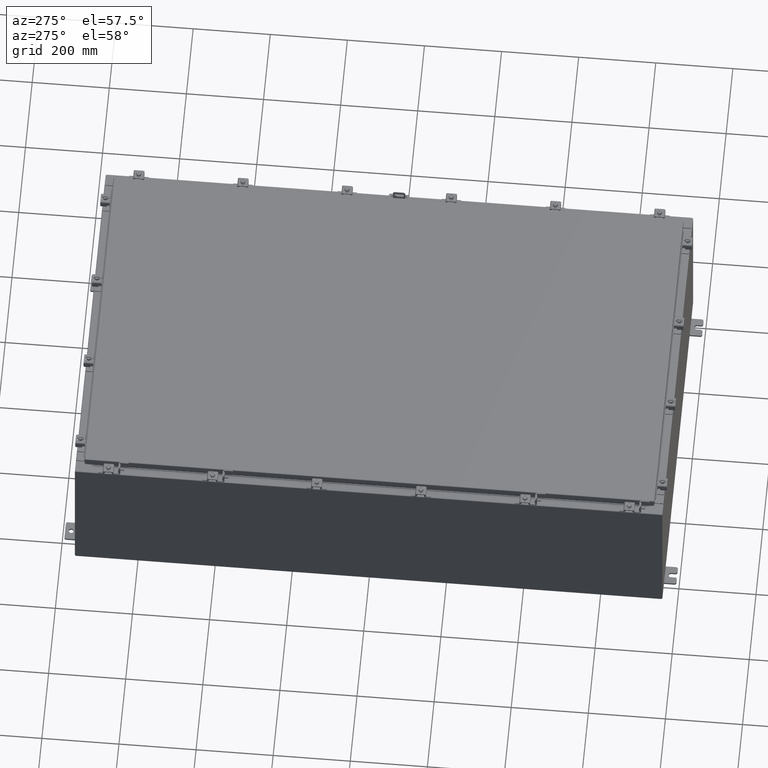
[diagram: clean part render]
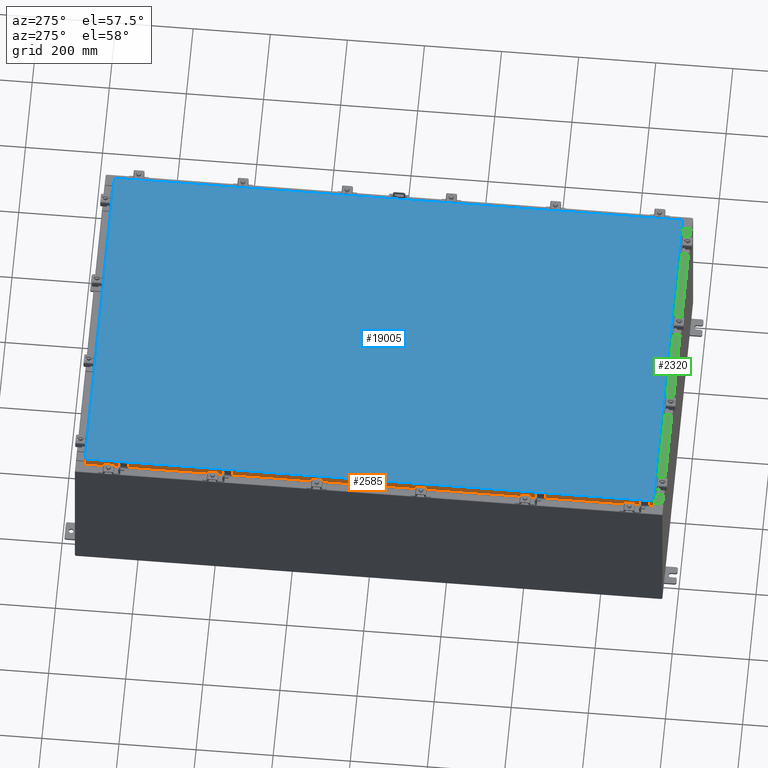
[diagram: same view with three faces highlighted in distinct colors, each labeled with its STEP entity id]
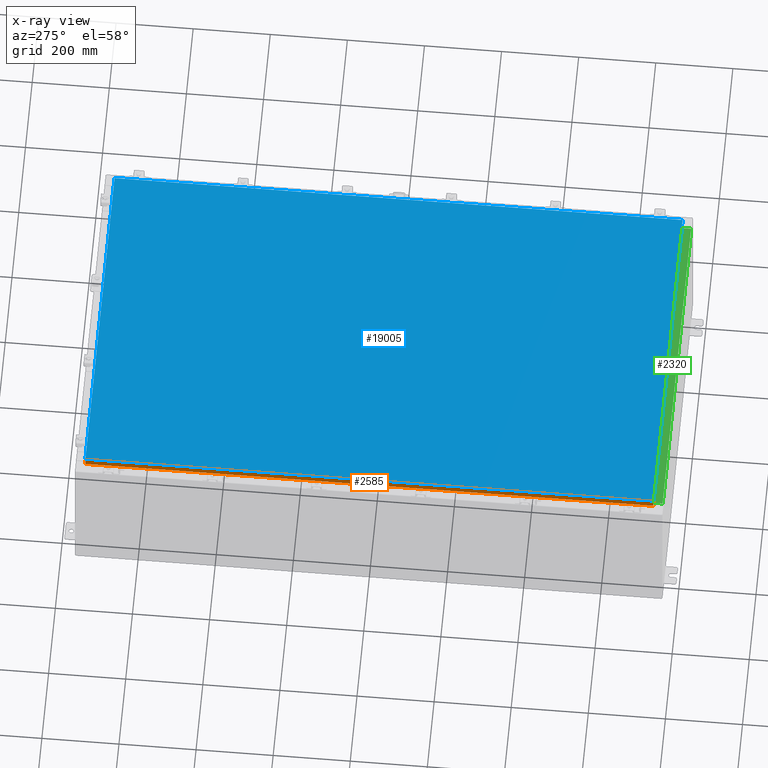
[diagram: x-ray of the same camera — body ghosted, the three highlighted faces saturated]
A machine part, auxiliary view with three faces highlighted in distinct colors.
The next image is the same camera in x-ray (body ghosted, the three faces saturated) — at least one of them is partly hidden behind the body in this view.
Their STEP definitions:

[orange] entity #2585 — the highlighted planar face has unit normal (1, 0, -0).
#624 = VECTOR ( 'NONE', #4853, 39.37007874015748100 ) ;
#1266 = EDGE_LOOP ( 'NONE', ( #14176, #4689, #3399, #27461, #1981, #4034 ) ) ;
#1704 = CARTESIAN_POINT ( 'NONE',  ( -17.07799999999999600, 29.00515786437626500, -0.08770000000000007000 ) ) ;
#1981 = ORIENTED_EDGE ( 'NONE', *, *, #10956, .F. ) ;
#2585 = ADVANCED_FACE ( 'NONE', ( #24496 ), #7654, .F. ) ;
#3006 = CARTESIAN_POINT ( 'NONE',  ( -17.07799999999999900, -29.09400000000000500, -0.8499999999999996400 ) ) ;
#3399 = ORIENTED_EDGE ( 'NONE', *, *, #17711, .F. ) ;
#4034 = ORIENTED_EDGE ( 'NONE', *, *, #10370, .F. ) ;
#4689 = ORIENTED_EDGE ( 'NONE', *, *, #6551, .T. ) ;
#4852 = CARTESIAN_POINT ( 'NONE',  ( -17.07799999999999900, -29.09400000000000500, -0.8499999999999996400 ) ) ;
#4853 = DIRECTION ( 'NONE',  ( -0.0000000000000000000, 1.000000000000000000, -0.0000000000000000000 ) ) ;
#4999 = LINE ( 'NONE', #24320, #21378 ) ;
#5601 = DIRECTION ( 'NONE',  ( 1.000000000000000000, 3.374737631835138300E-031, -2.818880942772360100E-015 ) ) ;
#5641 = EDGE_CURVE ( 'NONE', #26469, #9018, #16949, .T. ) ;
#5996 = LINE ( 'NONE', #4852, #17415 ) ;
#6060 = CARTESIAN_POINT ( 'NONE',  ( -17.07799999999998500, -28.25515786437626500, -0.8500000000000017500 ) ) ;
#6551 = EDGE_CURVE ( 'NONE', #23533, #6680, #22241, .T. ) ;
#6680 = VERTEX_POINT ( 'NONE', #26297 ) ;
#7654 = PLANE ( 'NONE',  #7750 ) ;
#7750 = AXIS2_PLACEMENT_3D ( 'NONE', #20415, #5601, #20605 ) ;
#8272 = VECTOR ( 'NONE', #17943, 39.37007874015748100 ) ;
#8839 = CARTESIAN_POINT ( 'NONE',  ( -17.07799999999999600, 29.00515786437626500, 2.509435972240157400E-013 ) ) ;
#8961 = LINE ( 'NONE', #3006, #8272 ) ;
#9018 = VERTEX_POINT ( 'NONE', #11288 ) ;
#9234 = CARTESIAN_POINT ( 'NONE',  ( -17.07799999999999900, -29.00515786437626500, -0.8499999999999996400 ) ) ;
#9664 = CARTESIAN_POINT ( 'NONE',  ( -17.07799999999999600, -29.00515786437627600, -0.08770000000000007000 ) ) ;
#9961 = CARTESIAN_POINT ( 'NONE',  ( -17.07799999999999600, -29.09400000000000500, -0.08770000000000007000 ) ) ;
#10055 = DIRECTION ( 'NONE',  ( 3.374737631835139200E-031, -1.000000000000000000, -9.198750492177080800E-046 ) ) ;
#10370 = EDGE_CURVE ( 'NONE', #20720, #18146, #4999, .T. ) ;
#10956 = EDGE_CURVE ( 'NONE', #18146, #26469, #5996, .T. ) ;
#10993 = DIRECTION ( 'NONE',  ( -2.818880942772360100E-015, 6.982962677686265900E-015, -1.000000000000000000 ) ) ;
#11288 = CARTESIAN_POINT ( 'NONE',  ( -17.07799999999998500, 28.25515786437626500, -0.8500000000000017500 ) ) ;
#11928 = VECTOR ( 'NONE', #10055, 39.37007874015748100 ) ;
#14176 = ORIENTED_EDGE ( 'NONE', *, *, #18400, .F. ) ;
#16949 = LINE ( 'NONE', #17667, #624 ) ;
#17415 = VECTOR ( 'NONE', #19826, 39.37007874015748100 ) ;
#17667 = CARTESIAN_POINT ( 'NONE',  ( -17.07799999999998500, -28.25515786437626500, -0.8500000000000017500 ) ) ;
#17711 = EDGE_CURVE ( 'NONE', #9018, #6680, #8961, .T. ) ;
#17943 = DIRECTION ( 'NONE',  ( 4.379057701015054300E-047, 1.000000000000000000, 1.197190551977018000E-016 ) ) ;
#18146 = VERTEX_POINT ( 'NONE', #9234 ) ;
#18400 = EDGE_CURVE ( 'NONE', #23533, #20720, #23308, .T. ) ;
#19826 = DIRECTION ( 'NONE',  ( 4.379057701015054300E-047, 1.000000000000000000, 1.197190551977018000E-016 ) ) ;
#20415 = CARTESIAN_POINT ( 'NONE',  ( -17.07799999999999600, -5.763376927648048400E-030, 4.840166239667793400E-014 ) ) ;
#20605 = DIRECTION ( 'NONE',  ( -2.818880942772360100E-015, 0.0000000000000000000, -1.000000000000000000 ) ) ;
#20720 = VERTEX_POINT ( 'NONE', #9664 ) ;
#20911 = VECTOR ( 'NONE', #10993, 39.37007874015748100 ) ;
#21378 = VECTOR ( 'NONE', #24402, 39.37007874015748100 ) ;
#22241 = LINE ( 'NONE', #8839, #20911 ) ;
#23308 = LINE ( 'NONE', #9961, #11928 ) ;
#23533 = VERTEX_POINT ( 'NONE', #1704 ) ;
#24320 = CARTESIAN_POINT ( 'NONE',  ( -17.07799999999999600, -29.00515786437627200, -0.07469999999999978000 ) ) ;
#24402 = DIRECTION ( 'NONE',  ( -2.818880942772360100E-015, 6.982962677686265900E-015, -1.000000000000000000 ) ) ;
#24496 = FACE_OUTER_BOUND ( 'NONE', #1266, .T. ) ;
#26297 = CARTESIAN_POINT ( 'NONE',  ( -17.07799999999999900, 29.00515786437627200, -0.8499999999999927600 ) ) ;
#26469 = VERTEX_POINT ( 'NONE', #6060 ) ;
#27461 = ORIENTED_EDGE ( 'NONE', *, *, #5641, .F. ) ;

[blue] entity #19005 — the highlighted planar face has unit normal (0, 0, -1).
#551 = VECTOR ( 'NONE', #9807, 39.37007874015748100 ) ;
#1164 = DIRECTION ( 'NONE',  ( 0.0000000000000000000, -1.000000000000000000, 0.0000000000000000000 ) ) ;
#1962 = VECTOR ( 'NONE', #8991, 39.37007874015748100 ) ;
#4794 = CARTESIAN_POINT ( 'NONE',  ( 16.99030000000000100, 29.00630000000000300, 1.946441695485787500E-015 ) ) ;
#4974 = EDGE_CURVE ( 'NONE', #15670, #7338, #13953, .T. ) ;
#6041 = VECTOR ( 'NONE', #12791, 39.37007874015748100 ) ;
#6716 = LINE ( 'NONE', #25575, #6041 ) ;
#6979 = CARTESIAN_POINT ( 'NONE',  ( 16.99030000000000100, 29.00630000000000300, 1.946441695485787500E-015 ) ) ;
#7338 = VERTEX_POINT ( 'NONE', #19747 ) ;
#7813 = VECTOR ( 'NONE', #1164, 39.37007874015748100 ) ;
#8991 = DIRECTION ( 'NONE',  ( -1.000000000000000000, -0.0000000000000000000, -0.0000000000000000000 ) ) ;
#9807 = DIRECTION ( 'NONE',  ( 0.0000000000000000000, 1.000000000000000000, 0.0000000000000000000 ) ) ;
#11157 = EDGE_LOOP ( 'NONE', ( #23471, #12806, #15370, #12409 ) ) ;
#12409 = ORIENTED_EDGE ( 'NONE', *, *, #20241, .T. ) ;
#12543 = DIRECTION ( 'NONE',  ( -1.000000000000000000, 0.0000000000000000000, -0.0000000000000000000 ) ) ;
#12791 = DIRECTION ( 'NONE',  ( 1.000000000000000000, -0.0000000000000000000, -0.0000000000000000000 ) ) ;
#12806 = ORIENTED_EDGE ( 'NONE', *, *, #26976, .T. ) ;
#13357 = CARTESIAN_POINT ( 'NONE',  ( 16.99030000000000500, -29.00630000000000000, -2.048885995248197400E-016 ) ) ;
#13953 = LINE ( 'NONE', #4794, #1962 ) ;
#14871 = LINE ( 'NONE', #16053, #7813 ) ;
#15370 = ORIENTED_EDGE ( 'NONE', *, *, #4974, .T. ) ;
#15472 = EDGE_CURVE ( 'NONE', #19061, #26685, #6716, .T. ) ;
#15670 = VERTEX_POINT ( 'NONE', #6979 ) ;
#16053 = CARTESIAN_POINT ( 'NONE',  ( -16.99029999999999800, 29.00629999999998900, -2.048885995248197400E-016 ) ) ;
#18924 = PLANE ( 'NONE',  #23439 ) ;
#19005 = ADVANCED_FACE ( 'NONE', ( #26275 ), #18924, .F. ) ;
#19061 = VERTEX_POINT ( 'NONE', #27563 ) ;
#19747 = CARTESIAN_POINT ( 'NONE',  ( -16.99029999999999800, 29.00629999999999600, -2.048885995248197400E-016 ) ) ;
#20241 = EDGE_CURVE ( 'NONE', #7338, #19061, #14871, .T. ) ;
#23108 = CARTESIAN_POINT ( 'NONE',  ( 0.0000000000000000000, 0.0000000000000000000, 0.0000000000000000000 ) ) ;
#23439 = AXIS2_PLACEMENT_3D ( 'NONE', #23108, #25320, #12543 ) ;
#23471 = ORIENTED_EDGE ( 'NONE', *, *, #15472, .T. ) ;
#23901 = LINE ( 'NONE', #26970, #551 ) ;
#25320 = DIRECTION ( 'NONE',  ( 0.0000000000000000000, 0.0000000000000000000, -1.000000000000000000 ) ) ;
#25575 = CARTESIAN_POINT ( 'NONE',  ( -16.99029999999999400, -29.00630000000000700, 1.946441695485787500E-015 ) ) ;
#26275 = FACE_OUTER_BOUND ( 'NONE', #11157, .T. ) ;
#26685 = VERTEX_POINT ( 'NONE', #13357 ) ;
#26970 = CARTESIAN_POINT ( 'NONE',  ( 16.99030000000000500, -29.00630000000000000, -2.048885995248197400E-016 ) ) ;
#26976 = EDGE_CURVE ( 'NONE', #26685, #15670, #23901, .T. ) ;
#27563 = CARTESIAN_POINT ( 'NONE',  ( -16.99029999999999400, -29.00630000000000700, 1.946441695485787500E-015 ) ) ;

[green] entity #2320 — the highlighted planar face has unit normal (-0, -0, 1).
#1062 = CARTESIAN_POINT ( 'NONE',  ( -16.63720000000000000, -0.07469999999999973900, 8.000000000000001800 ) ) ;
#1175 = ORIENTED_EDGE ( 'NONE', *, *, #14986, .F. ) ;
#2320 = ADVANCED_FACE ( 'NONE', ( #12788 ), #4805, .T. ) ;
#2403 = CARTESIAN_POINT ( 'NONE',  ( 16.63720000000000400, -1.287300000000000300, 8.000000000000003600 ) ) ;
#2747 = CARTESIAN_POINT ( 'NONE',  ( 16.63720000000000400, -0.08770000000000102700, 8.000000000000000000 ) ) ;
#3184 = DIRECTION ( 'NONE',  ( -0.0000000000000000000, 1.000000000000000000, -3.566381192773190000E-015 ) ) ;
#3622 = AXIS2_PLACEMENT_3D ( 'NONE', #19777, #21907, #9105 ) ;
#3868 = EDGE_CURVE ( 'NONE', #21150, #6369, #12654, .T. ) ;
#4805 = PLANE ( 'NONE',  #3622 ) ;
#6301 = CARTESIAN_POINT ( 'NONE',  ( 16.63720000000000000, -1.287300000000000300, 8.000000000000003600 ) ) ;
#6369 = VERTEX_POINT ( 'NONE', #6301 ) ;
#7098 = ORIENTED_EDGE ( 'NONE', *, *, #7429, .T. ) ;
#7429 = EDGE_CURVE ( 'NONE', #21150, #23815, #14851, .T. ) ;
#7478 = DIRECTION ( 'NONE',  ( -0.0000000000000000000, -1.000000000000000000, 3.566381192773190000E-015 ) ) ;
#7593 = EDGE_LOOP ( 'NONE', ( #18662, #1175, #14606, #7098 ) ) ;
#7619 = VECTOR ( 'NONE', #7478, 39.37007874015748100 ) ;
#9105 = DIRECTION ( 'NONE',  ( 0.0000000000000000000, -1.000000000000000000, 3.566381192773190000E-015 ) ) ;
#9393 = VECTOR ( 'NONE', #3184, 39.37007874015748100 ) ;
#10964 = DIRECTION ( 'NONE',  ( -1.000000000000000000, 0.0000000000000000000, 0.0000000000000000000 ) ) ;
#12654 = LINE ( 'NONE', #18161, #7619 ) ;
#12788 = FACE_OUTER_BOUND ( 'NONE', #7593, .T. ) ;
#13555 = DIRECTION ( 'NONE',  ( -1.000000000000000000, -6.568047492761434800E-017, 6.568047492761457000E-017 ) ) ;
#14606 = ORIENTED_EDGE ( 'NONE', *, *, #3868, .F. ) ;
#14851 = LINE ( 'NONE', #24221, #18517 ) ;
#14986 = EDGE_CURVE ( 'NONE', #6369, #18200, #23139, .T. ) ;
#15840 = EDGE_CURVE ( 'NONE', #18200, #23815, #26419, .T. ) ;
#17933 = CARTESIAN_POINT ( 'NONE',  ( -16.63720000000000000, -1.287299999999999400, 8.000000000000007100 ) ) ;
#18161 = CARTESIAN_POINT ( 'NONE',  ( 16.63720000000000000, -1.300299999999999800, 8.000000000000003600 ) ) ;
#18200 = VERTEX_POINT ( 'NONE', #17933 ) ;
#18517 = VECTOR ( 'NONE', #13555, 39.37007874015748100 ) ;
#18662 = ORIENTED_EDGE ( 'NONE', *, *, #15840, .F. ) ;
#19506 = CARTESIAN_POINT ( 'NONE',  ( -16.63720000000000000, -0.08770000000000136000, 8.000000000000001800 ) ) ;
#19777 = CARTESIAN_POINT ( 'NONE',  ( 5.250912337413644300E-016, 2.852545452309695200E-014, 8.000000000000001800 ) ) ;
#21150 = VERTEX_POINT ( 'NONE', #2747 ) ;
#21907 = DIRECTION ( 'NONE',  ( 6.568047492761433500E-017, 3.566381192773190000E-015, 1.000000000000000000 ) ) ;
#22471 = VECTOR ( 'NONE', #10964, 39.37007874015748100 ) ;
#23139 = LINE ( 'NONE', #2403, #22471 ) ;
#23815 = VERTEX_POINT ( 'NONE', #19506 ) ;
#24221 = CARTESIAN_POINT ( 'NONE',  ( 5.308514113925181600E-016, -0.08770000000000136000, 8.000000000000001800 ) ) ;
#26419 = LINE ( 'NONE', #1062, #9393 ) ;